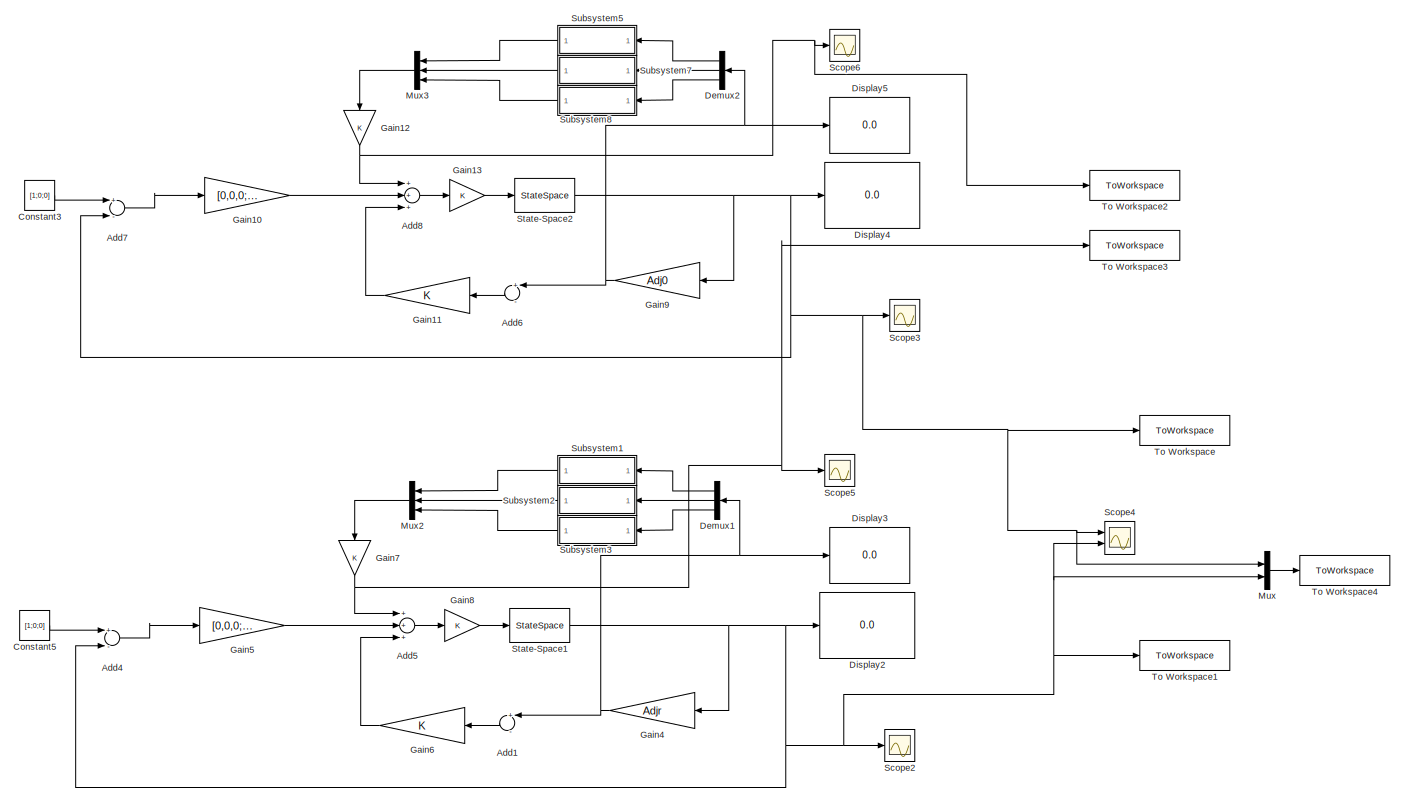
[diagram: root canvas - part 1/1, most of the canvas]
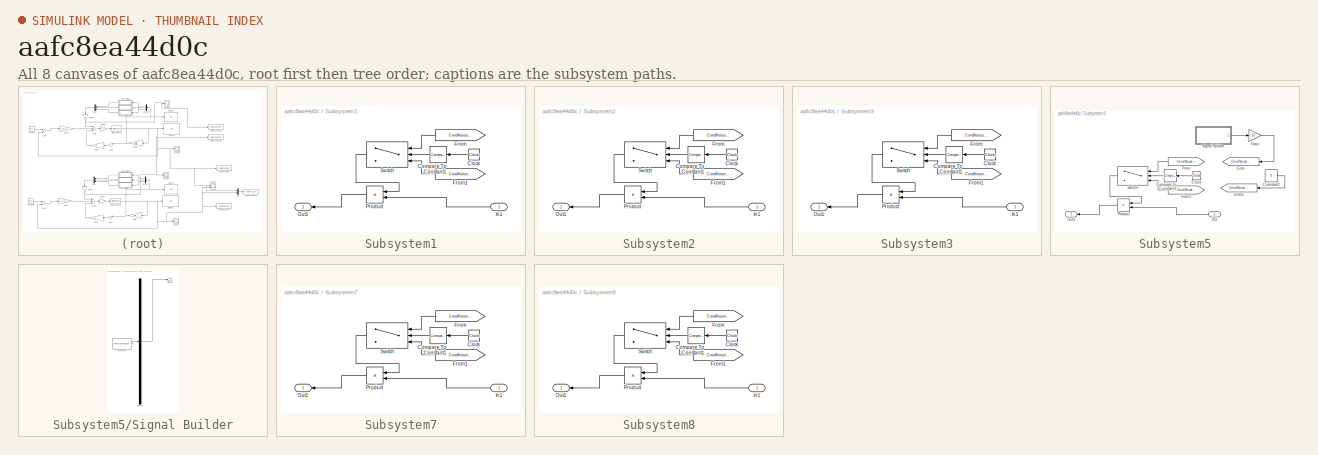
[diagram: thumbnail index - all 8 canvases of the model, root first then tree order]
MODEL slx_aafc8ea44d0c
KIND model
CONFIG AbsTol = auto
CONFIG EnableMultiTasking = off
CONFIG FixedStep = auto
CONFIG MaxStep = auto
CONFIG MinStep = auto
CONFIG RelTol = 1e-3
CONFIG SampleTimeConstraint = Unconstrained
CONFIG Solver = VariableStepAuto
CONFIG SolverName = VariableStepAuto
CONFIG StartTime = 0.0
CONFIG StopTime = 20
BLOCK [Sum] Add1
  InputSameDT = off
  Inputs = +-
  OutDataTypeStr = Inherit: Inherit via internal rule
  Ports = [2, 1]
  SaturateOnIntegerOverflow = off
BLOCK [Sum] Add4
  InputSameDT = off
  Inputs = +-
  OutDataTypeStr = Inherit: Inherit via internal rule
  Ports = [2, 1]
  SaturateOnIntegerOverflow = off
BLOCK [Sum] Add5
  InputSameDT = off
  Inputs = +++
  OutDataTypeStr = Inherit: Inherit via internal rule
  Ports = [3, 1]
  SaturateOnIntegerOverflow = off
BLOCK [Sum] Add6
  InputSameDT = off
  Inputs = +-
  OutDataTypeStr = Inherit: Inherit via internal rule
  Ports = [2, 1]
  SaturateOnIntegerOverflow = off
BLOCK [Sum] Add7
  InputSameDT = off
  Inputs = +-
  OutDataTypeStr = Inherit: Inherit via internal rule
  Ports = [2, 1]
  SaturateOnIntegerOverflow = off
BLOCK [Sum] Add8
  InputSameDT = off
  Inputs = +++
  OutDataTypeStr = Inherit: Inherit via internal rule
  Ports = [3, 1]
  SaturateOnIntegerOverflow = off
BLOCK [Constant] Constant3
  Value = [1;0;0]
BLOCK [Constant] Constant5
  Value = [1;0;0]
BLOCK [Demux] Demux1
  DisplayOption = bar
  Outputs = 3
  Ports = [1, 3]
BLOCK [Demux] Demux2
  DisplayOption = bar
  Outputs = 3
  Ports = [1, 3]
BLOCK [Display] Display2
  Decimation = 1
  Ports = [1]
BLOCK [Display] Display3
  Decimation = 1
  Ports = [1]
BLOCK [Display] Display4
  Decimation = 1
  Ports = [1]
BLOCK [Display] Display5
  Decimation = 1
  Ports = [1]
BLOCK [Gain] Gain10
  Gain = [0,0,0;0,0,0;0,0,0]
  Multiplication = Matrix(K*u) (u vector)
  OutDataTypeStr = Inherit: Inherit via internal rule
  ParamDataTypeStr = Inherit: Inherit via internal rule
  SaturateOnIntegerOverflow = off
BLOCK [Gain] Gain11
  OutDataTypeStr = Inherit: Inherit via internal rule
  ParamDataTypeStr = Inherit: Inherit via internal rule
  SaturateOnIntegerOverflow = off
BLOCK [Gain] Gain12
  OutDataTypeStr = Inherit: Inherit via internal rule
  ParamDataTypeStr = Inherit: Inherit via internal rule
  SaturateOnIntegerOverflow = off
BLOCK [Gain] Gain13
  OutDataTypeStr = Inherit: Inherit via internal rule
  ParamDataTypeStr = Inherit: Inherit via internal rule
  SaturateOnIntegerOverflow = off
BLOCK [Gain] Gain4
  Gain = Adjr
  Multiplication = Matrix(K*u) (u vector)
  OutDataTypeStr = Inherit: Inherit via internal rule
  ParamDataTypeStr = Inherit: Inherit via internal rule
  SaturateOnIntegerOverflow = off
BLOCK [Gain] Gain5
  Gain = [0,0,0;0,0,0;0,0,0]
  Multiplication = Matrix(K*u) (u vector)
  OutDataTypeStr = Inherit: Inherit via internal rule
  ParamDataTypeStr = Inherit: Inherit via internal rule
  SaturateOnIntegerOverflow = off
BLOCK [Gain] Gain6
  OutDataTypeStr = Inherit: Inherit via internal rule
  ParamDataTypeStr = Inherit: Inherit via internal rule
  SaturateOnIntegerOverflow = off
BLOCK [Gain] Gain7
  OutDataTypeStr = Inherit: Inherit via internal rule
  ParamDataTypeStr = Inherit: Inherit via internal rule
  SaturateOnIntegerOverflow = off
BLOCK [Gain] Gain8
  OutDataTypeStr = Inherit: Inherit via internal rule
  ParamDataTypeStr = Inherit: Inherit via internal rule
  SaturateOnIntegerOverflow = off
BLOCK [Gain] Gain9
  Gain = Adj0
  Multiplication = Matrix(K*u) (u vector)
  OutDataTypeStr = Inherit: Inherit via internal rule
  ParamDataTypeStr = Inherit: Inherit via internal rule
  SaturateOnIntegerOverflow = off
BLOCK [Mux] Mux
  DisplayOption = bar
  Inputs = 2
  Ports = [2, 1]
BLOCK [Mux] Mux2
  DisplayOption = bar
  Inputs = 3
  Ports = [3, 1]
BLOCK [Mux] Mux3
  DisplayOption = bar
  Inputs = 3
  Ports = [3, 1]
BLOCK [Scope] Scope2
  Floating = off
  NumInputPorts = 1
  Ports = [1]
  ScopeSpecificationString = Simulink.scopes.TimeScopeBlockCfg('CurrentConfiguration', extmgr.ConfigurationSet(extmgr.Configuration('Core','General UI',true),extmgr.Configuration('Core','Source UI',true),extmgr.Configuration('Sources','WiredSimulink',true),extmgr.Configuration('Visuals','Time Domain',true,'SerializedDisplays',{struct('MinYLimReal','-0.13802','MaxYLimReal','1.24223','YLabelReal','','MinYLimMag','0.00000','MaxY...<+1404ch>
BLOCK [Scope] Scope3
  Floating = off
  NumInputPorts = 1
  Ports = [1]
  ScopeSpecificationString = Simulink.scopes.TimeScopeBlockCfg('CurrentConfiguration', extmgr.ConfigurationSet(extmgr.Configuration('Core','General UI',true),extmgr.Configuration('Core','Source UI',true),extmgr.Configuration('Sources','WiredSimulink',true,'DataLoggingVariableName','ScopeData2'),extmgr.Configuration('Visuals','Time Domain',true,'SerializedDisplays',{struct('MinYLimReal','-0.0921','MaxYLimReal','1.23151','YLabe...<+1439ch>
BLOCK [Scope] Scope4
  Floating = off
  NumInputPorts = 2
  Ports = [2]
  ScopeSpecificationString = Simulink.scopes.TimeScopeBlockCfg('CurrentConfiguration', extmgr.ConfigurationSet(extmgr.Configuration('Core','General UI',true),extmgr.Configuration('Core','Source UI',true),extmgr.Configuration('Sources','WiredSimulink',true,'DataLoggingVariableName','ScopeData3'),extmgr.Configuration('Visuals','Time Domain',true,'SerializedDisplays',{struct('MinYLimReal','-0.13802','MaxYLimReal','1.24223','YLab...<+1492ch>
BLOCK [Scope] Scope5
  Floating = off
  NumInputPorts = 1
  Ports = [1]
  ScopeSpecificationString = Simulink.scopes.TimeScopeBlockCfg('CurrentConfiguration', extmgr.ConfigurationSet(extmgr.Configuration('Core','General UI',true),extmgr.Configuration('Core','Source UI',true),extmgr.Configuration('Sources','WiredSimulink',true,'DataLoggingVariableName','ScopeData4'),extmgr.Configuration('Visuals','Time Domain',true,'SerializedDisplays',{struct('MinYLimReal','-0.36561','MaxYLimReal','3.29048','YLab...<+1422ch>
BLOCK [Scope] Scope6
  Floating = off
  NumInputPorts = 1
  Ports = [1]
  ScopeSpecificationString = Simulink.scopes.TimeScopeBlockCfg('CurrentConfiguration', extmgr.ConfigurationSet(extmgr.Configuration('Core','General UI',true),extmgr.Configuration('Core','Source UI',true),extmgr.Configuration('Sources','WiredSimulink',true,'DataLoggingVariableName','ScopeData5'),extmgr.Configuration('Visuals','Time Domain',true,'SerializedDisplays',{struct('MinYLimReal','-0.9511','MaxYLimReal','8.55988','YLabe...<+1423ch>
BLOCK [StateSpace] State-Space1
  A = Gco.A
  B = Gco.B
  C = Gco.C
  D = Gco.D
  InitialCondition = [1,0.7,0.6,1,0.4,0.8]
  Ports = [1, 1]
BLOCK [StateSpace] State-Space2
  A = Gco.A
  B = Gco.B
  C = Gco.C
  D = Gco.D
  InitialCondition = [1,0.7,0.6,1,0.4,0.8]
  Ports = [1, 1]
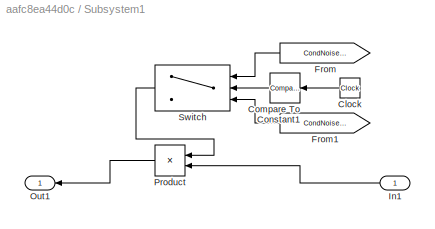
BLOCK [SubSystem] Subsystem1
  Ports = [1, 1]
  RequestExecContextInheritance = off
BLOCK [Clock] Subsystem1/Clock
BLOCK [Reference] Subsystem1/Compare To Constant1  REF=simulink/Logic and Bit
Operations/Compare
To Constant
  Ports = [1, 1]
  SourceBlock = simulink/Logic and Bit\nOperations/Compare\nTo Constant
  SourceProductBaseCode = SL
  SourceProductName = Simulink
  SourceType = Compare To Constant
BLOCK [From] Subsystem1/From
  GotoTag = CondNoiseHigh
  TagVisibility = global
BLOCK [From] Subsystem1/From1
  GotoTag = CondNoiseLow
  TagVisibility = global
BLOCK [Inport] Subsystem1/In1
  IconDisplay = Port number
BLOCK [Outport] Subsystem1/Out1
  IconDisplay = Port number
BLOCK [Product] Subsystem1/Product
  InputSameDT = off
  OutDataTypeStr = Inherit: Inherit via internal rule
  Ports = [2, 1]
  RndMeth = Floor
  SaturateOnIntegerOverflow = off
BLOCK [Switch] Subsystem1/Switch
  InputSameDT = off
  SaturateOnIntegerOverflow = off
  Threshold = 0.8
BLOCK [SubSystem] Subsystem2
  Ports = [1, 1]
  RequestExecContextInheritance = off
BLOCK [Clock] Subsystem2/Clock
BLOCK [Reference] Subsystem2/Compare To Constant1  REF=simulink/Logic and Bit
Operations/Compare
To Constant
  Ports = [1, 1]
  SourceBlock = simulink/Logic and Bit\nOperations/Compare\nTo Constant
  SourceProductBaseCode = SL
  SourceProductName = Simulink
  SourceType = Compare To Constant
BLOCK [From] Subsystem2/From
  GotoTag = CondNoiseHigh
  TagVisibility = global
BLOCK [From] Subsystem2/From1
  GotoTag = CondNoiseLow
  TagVisibility = global
BLOCK [Inport] Subsystem2/In1
  IconDisplay = Port number
BLOCK [Outport] Subsystem2/Out1
  IconDisplay = Port number
BLOCK [Product] Subsystem2/Product
  InputSameDT = off
  OutDataTypeStr = Inherit: Inherit via internal rule
  Ports = [2, 1]
  RndMeth = Floor
  SaturateOnIntegerOverflow = off
BLOCK [Switch] Subsystem2/Switch
  InputSameDT = off
  SaturateOnIntegerOverflow = off
  Threshold = 0.8
BLOCK [SubSystem] Subsystem3
  Ports = [1, 1]
  RequestExecContextInheritance = off
BLOCK [Clock] Subsystem3/Clock
BLOCK [Reference] Subsystem3/Compare To Constant1  REF=simulink/Logic and Bit
Operations/Compare
To Constant
  Ports = [1, 1]
  SourceBlock = simulink/Logic and Bit\nOperations/Compare\nTo Constant
  SourceProductBaseCode = SL
  SourceProductName = Simulink
  SourceType = Compare To Constant
BLOCK [From] Subsystem3/From
  GotoTag = CondNoiseHigh
  TagVisibility = global
BLOCK [From] Subsystem3/From1
  GotoTag = CondNoiseLow
  TagVisibility = global
BLOCK [Inport] Subsystem3/In1
  IconDisplay = Port number
BLOCK [Outport] Subsystem3/Out1
  IconDisplay = Port number
BLOCK [Product] Subsystem3/Product
  InputSameDT = off
  OutDataTypeStr = Inherit: Inherit via internal rule
  Ports = [2, 1]
  RndMeth = Floor
  SaturateOnIntegerOverflow = off
BLOCK [Switch] Subsystem3/Switch
  InputSameDT = off
  SaturateOnIntegerOverflow = off
  Threshold = 0.8
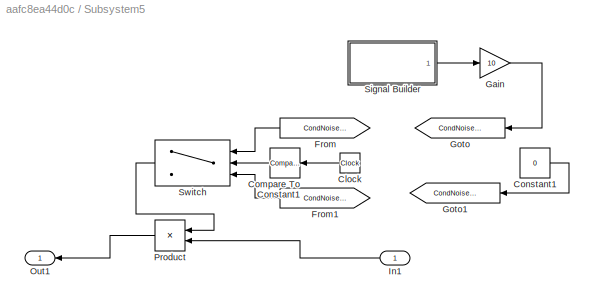
BLOCK [SubSystem] Subsystem5
  Ports = [1, 1]
  RequestExecContextInheritance = off
BLOCK [Clock] Subsystem5/Clock
BLOCK [Reference] Subsystem5/Compare To Constant1  REF=simulink/Logic and Bit
Operations/Compare
To Constant
  Ports = [1, 1]
  SourceBlock = simulink/Logic and Bit\nOperations/Compare\nTo Constant
  SourceProductBaseCode = SL
  SourceProductName = Simulink
  SourceType = Compare To Constant
BLOCK [Constant] Subsystem5/Constant1
  Value = 0
BLOCK [From] Subsystem5/From
  GotoTag = CondNoiseHigh
  TagVisibility = global
BLOCK [From] Subsystem5/From1
  GotoTag = CondNoiseLow
  TagVisibility = global
BLOCK [Gain] Subsystem5/Gain
  Gain = 10
  OutDataTypeStr = Inherit: Inherit via internal rule
  ParamDataTypeStr = Inherit: Inherit via internal rule
  SaturateOnIntegerOverflow = off
BLOCK [Goto] Subsystem5/Goto
  GotoTag = CondNoiseHigh
  TagVisibility = global
BLOCK [Goto] Subsystem5/Goto1
  GotoTag = CondNoiseLow
  TagVisibility = global
BLOCK [Inport] Subsystem5/In1
  IconDisplay = Port number
BLOCK [Outport] Subsystem5/Out1
  IconDisplay = Port number
BLOCK [Product] Subsystem5/Product
  InputSameDT = off
  OutDataTypeStr = Inherit: Inherit via internal rule
  Ports = [2, 1]
  RndMeth = Floor
  SaturateOnIntegerOverflow = off
BLOCK [SubSystem] Subsystem5/Signal Builder
  ClipboardFcn = sigbuilder_block('clipboard');
  CloseFcn = sigbuilder_block('close');
  ContinueFcn = sigbuilder_block('continue');
  CopyFcn = sigbuilder_block('copy');
  DeleteFcn = sigbuilder_block('delete');
  LoadFcn = sigbuilder_block('load');
  MaskHideContents = on
  ModelCloseFcn = sigbuilder_block('modelClose');
  NameChangeFcn = sigbuilder_block('namechange');
  OpenFcn = sigbuilder_block('open',[437.6 199.2 550.4 400 ]);
  PauseFcn = sigbuilder_block('pause');
  Ports = [0, 1]
  PreSaveFcn = sigbuilder_block('preSave');
  RequestExecContextInheritance = off
  StartFcn = sigbuilder_block('start');
  StopFcn = sigbuilder_block('stop');
  Tag = STV Subsys
BLOCK [Demux] Subsystem5/Signal Builder/Demux
  Outputs = 1
  Ports = [1, 1]
  Tag = STV Demux
BLOCK [FromWorkspace] Subsystem5/Signal Builder/FromWs
  SampleTime = 0
  Tag = STV FromWs
  VariableName = tuvar
  ZeroCross = on
BLOCK [Outport] Subsystem5/Signal Builder/Signal 1
  IconDisplay = Port number
  Tag = STV Outport
BLOCK [Switch] Subsystem5/Switch
  InputSameDT = off
  SaturateOnIntegerOverflow = off
  Threshold = 0.8
BLOCK [SubSystem] Subsystem7
  Ports = [1, 1]
  RequestExecContextInheritance = off
BLOCK [Clock] Subsystem7/Clock
BLOCK [Reference] Subsystem7/Compare To Constant1  REF=simulink/Logic and Bit
Operations/Compare
To Constant
  Ports = [1, 1]
  SourceBlock = simulink/Logic and Bit\nOperations/Compare\nTo Constant
  SourceProductBaseCode = SL
  SourceProductName = Simulink
  SourceType = Compare To Constant
BLOCK [From] Subsystem7/From
  GotoTag = CondNoiseHigh
  TagVisibility = global
BLOCK [From] Subsystem7/From1
  GotoTag = CondNoiseLow
  TagVisibility = global
BLOCK [Inport] Subsystem7/In1
  IconDisplay = Port number
BLOCK [Outport] Subsystem7/Out1
  IconDisplay = Port number
BLOCK [Product] Subsystem7/Product
  InputSameDT = off
  OutDataTypeStr = Inherit: Inherit via internal rule
  Ports = [2, 1]
  RndMeth = Floor
  SaturateOnIntegerOverflow = off
BLOCK [Switch] Subsystem7/Switch
  InputSameDT = off
  SaturateOnIntegerOverflow = off
  Threshold = 0.8
BLOCK [SubSystem] Subsystem8
  Ports = [1, 1]
  RequestExecContextInheritance = off
BLOCK [Clock] Subsystem8/Clock
BLOCK [Reference] Subsystem8/Compare To Constant1  REF=simulink/Logic and Bit
Operations/Compare
To Constant
  Ports = [1, 1]
  SourceBlock = simulink/Logic and Bit\nOperations/Compare\nTo Constant
  SourceProductBaseCode = SL
  SourceProductName = Simulink
  SourceType = Compare To Constant
BLOCK [From] Subsystem8/From
  GotoTag = CondNoiseHigh
  TagVisibility = global
BLOCK [From] Subsystem8/From1
  GotoTag = CondNoiseLow
  TagVisibility = global
BLOCK [Inport] Subsystem8/In1
  IconDisplay = Port number
BLOCK [Outport] Subsystem8/Out1
  IconDisplay = Port number
BLOCK [Product] Subsystem8/Product
  InputSameDT = off
  OutDataTypeStr = Inherit: Inherit via internal rule
  Ports = [2, 1]
  RndMeth = Floor
  SaturateOnIntegerOverflow = off
BLOCK [Switch] Subsystem8/Switch
  InputSameDT = off
  SaturateOnIntegerOverflow = off
  Threshold = 0.8
BLOCK [ToWorkspace] To Workspace
  FixptAsFi = on
  MaxDataPoints = inf
  Ports = [1]
  SampleTime = -1
  SaveFormat = Timeseries
  VariableName = z_nom
BLOCK [ToWorkspace] To Workspace1
  FixptAsFi = on
  MaxDataPoints = inf
  Ports = [1]
  SampleTime = -1
  SaveFormat = Timeseries
  VariableName = z_rob
BLOCK [ToWorkspace] To Workspace2
  FixptAsFi = on
  MaxDataPoints = inf
  Ports = [1]
  SampleTime = -1
  SaveFormat = Timeseries
  VariableName = unc_nom
BLOCK [ToWorkspace] To Workspace3
  FixptAsFi = on
  MaxDataPoints = inf
  Ports = [1]
  SampleTime = -1
  SaveFormat = Timeseries
  VariableName = unc_rob
BLOCK [ToWorkspace] To Workspace4
  FixptAsFi = on
  MaxDataPoints = inf
  Ports = [1]
  SampleTime = -1
  SaveFormat = Timeseries
  VariableName = z
LINE Add1:1 -> Gain6:1
LINE Add4:1 -> Gain5:1
LINE Add5:1 -> Gain8:1
LINE Add6:1 -> Gain11:1
LINE Add7:1 -> Gain10:1
LINE Add8:1 -> Gain13:1
LINE Constant3:1 -> Add7:1
LINE Constant5:1 -> Add4:1
LINE Demux1:1 -> Subsystem1:1
LINE Demux1:2 -> Subsystem2:1
LINE Demux1:3 -> Subsystem3:1
LINE Demux2:1 -> Subsystem5:1
LINE Demux2:2 -> Subsystem7:1
LINE Demux2:3 -> Subsystem8:1
LINE Gain10:1 -> Add8:2
LINE Gain11:1 -> Add8:3
NET Gain12:1 -> Add8:1, Scope6:1, To Workspace2:1
LINE Gain13:1 -> State-Space2:1
NET Gain4:1 -> Add1:1, Demux1:1, Display3:1
LINE Gain5:1 -> Add5:2
LINE Gain6:1 -> Add5:3
NET Gain7:1 -> Add5:1, Scope5:1, To Workspace3:1
LINE Gain8:1 -> State-Space1:1
NET Gain9:1 -> Add6:1, Demux2:1, Display5:1
LINE Mux2:1 -> Gain7:1
LINE Mux3:1 -> Gain12:1
LINE Mux:1 -> To Workspace4:1
NET State-Space1:1 -> Add4:2, Display2:1, Gain4:1, Mux:2, Scope2:1, Scope4:2, To Workspace1:1
NET State-Space2:1 -> Add7:2, Display4:1, Gain9:1, Mux:1, Scope3:1, Scope4:1, To Workspace:1
LINE Subsystem1/Clock:1 -> Subsystem1/Compare To Constant1:1
LINE Subsystem1/Compare To Constant1:1 -> Subsystem1/Switch:2
LINE Subsystem1/From1:1 -> Subsystem1/Switch:3
LINE Subsystem1/From:1 -> Subsystem1/Switch:1
LINE Subsystem1/In1:1 -> Subsystem1/Product:2
LINE Subsystem1/Product:1 -> Subsystem1/Out1:1
LINE Subsystem1/Switch:1 -> Subsystem1/Product:1
LINE Subsystem1:1 -> Mux2:1
LINE Subsystem2/Clock:1 -> Subsystem2/Compare To Constant1:1
LINE Subsystem2/Compare To Constant1:1 -> Subsystem2/Switch:2
LINE Subsystem2/From1:1 -> Subsystem2/Switch:3
LINE Subsystem2/From:1 -> Subsystem2/Switch:1
LINE Subsystem2/In1:1 -> Subsystem2/Product:2
LINE Subsystem2/Product:1 -> Subsystem2/Out1:1
LINE Subsystem2/Switch:1 -> Subsystem2/Product:1
LINE Subsystem2:1 -> Mux2:2
LINE Subsystem3/Clock:1 -> Subsystem3/Compare To Constant1:1
LINE Subsystem3/Compare To Constant1:1 -> Subsystem3/Switch:2
LINE Subsystem3/From1:1 -> Subsystem3/Switch:3
LINE Subsystem3/From:1 -> Subsystem3/Switch:1
LINE Subsystem3/In1:1 -> Subsystem3/Product:2
LINE Subsystem3/Product:1 -> Subsystem3/Out1:1
LINE Subsystem3/Switch:1 -> Subsystem3/Product:1
LINE Subsystem3:1 -> Mux2:3
LINE Subsystem5/Clock:1 -> Subsystem5/Compare To Constant1:1
LINE Subsystem5/Compare To Constant1:1 -> Subsystem5/Switch:2
LINE Subsystem5/Constant1:1 -> Subsystem5/Goto1:1
LINE Subsystem5/From1:1 -> Subsystem5/Switch:3
LINE Subsystem5/From:1 -> Subsystem5/Switch:1
LINE Subsystem5/Gain:1 -> Subsystem5/Goto:1
LINE Subsystem5/In1:1 -> Subsystem5/Product:2
LINE Subsystem5/Product:1 -> Subsystem5/Out1:1
LINE Subsystem5/Signal Builder:1 -> Subsystem5/Gain:1
LINE Subsystem5/Switch:1 -> Subsystem5/Product:1
LINE Subsystem5:1 -> Mux3:1
LINE Subsystem7/Clock:1 -> Subsystem7/Compare To Constant1:1
LINE Subsystem7/Compare To Constant1:1 -> Subsystem7/Switch:2
LINE Subsystem7/From1:1 -> Subsystem7/Switch:3
LINE Subsystem7/From:1 -> Subsystem7/Switch:1
LINE Subsystem7/In1:1 -> Subsystem7/Product:2
LINE Subsystem7/Product:1 -> Subsystem7/Out1:1
LINE Subsystem7/Switch:1 -> Subsystem7/Product:1
LINE Subsystem7:1 -> Mux3:2
LINE Subsystem8/Clock:1 -> Subsystem8/Compare To Constant1:1
LINE Subsystem8/Compare To Constant1:1 -> Subsystem8/Switch:2
LINE Subsystem8/From1:1 -> Subsystem8/Switch:3
LINE Subsystem8/From:1 -> Subsystem8/Switch:1
LINE Subsystem8/In1:1 -> Subsystem8/Product:2
LINE Subsystem8/Product:1 -> Subsystem8/Out1:1
LINE Subsystem8/Switch:1 -> Subsystem8/Product:1
LINE Subsystem8:1 -> Mux3:3
note: NET lines group one-source signal fan-out (src -> all destinations, sorted); 1:1 wires keep LINE
